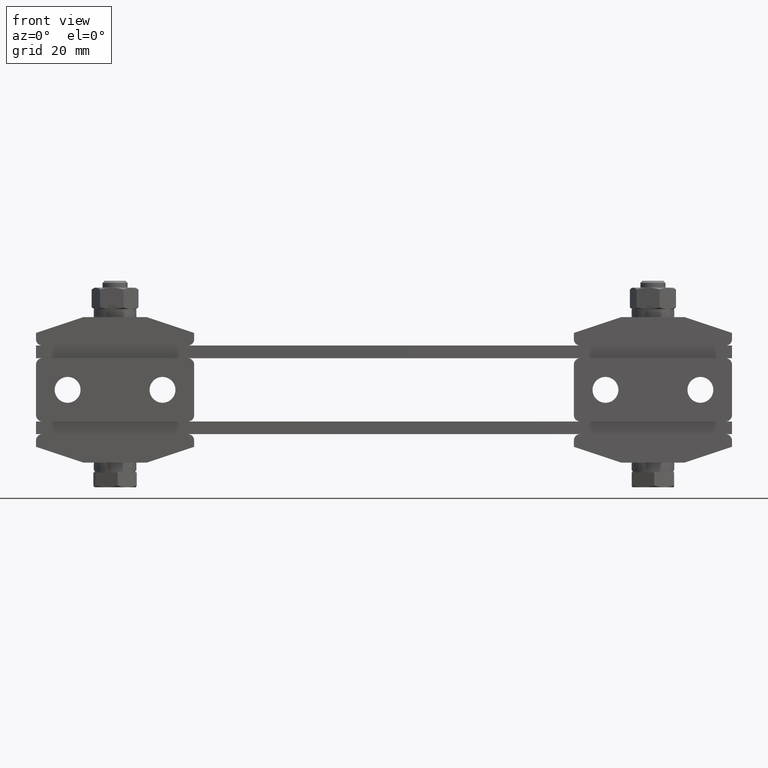
[diagram: clean part render]
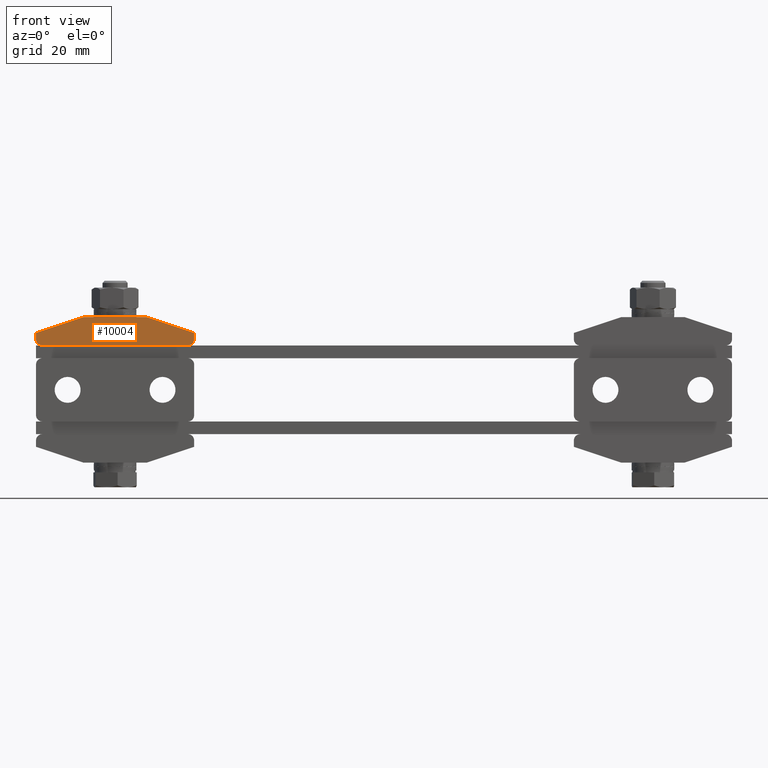
[diagram: same view with one face highlighted and labeled with its STEP entity id]
A machine part, front view. The second image highlights one B-rep face of the part: STEP entity #10004.
In plain terms, the highlighted planar face has unit normal (0, 1, -0).
Its self-contained STEP definition (entity closure, byte-faithful):
#509 = DIRECTION ( 'NONE',  ( -5.519574696289929800E-017, -1.000000000000000000, 4.040289502454674500E-018 ) ) ;
#593 = ORIENTED_EDGE ( 'NONE', *, *, #13971, .T. ) ;
#760 = VECTOR ( 'NONE', #12395, 1000.000000000000000 ) ;
#1137 = AXIS2_PLACEMENT_3D ( 'NONE', #18101, #14706, #9880 ) ;
#1358 = CARTESIAN_POINT ( 'NONE',  ( -103.8000000000000000, -12.50000000000000000, 46.60000000000000100 ) ) ;
#2336 = CARTESIAN_POINT ( 'NONE',  ( -108.0000000000000000, -12.50000000000000000, 28.00000000000000000 ) ) ;
#2401 = LINE ( 'NONE', #1358, #10660 ) ;
#2480 = PLANE ( 'NONE',  #20791 ) ;
#2803 = CARTESIAN_POINT ( 'NONE',  ( -110.0000000000000000, -12.50000000000000000, 30.00000000000000000 ) ) ;
#3065 = VERTEX_POINT ( 'NONE', #2803 ) ;
#3656 = CIRCLE ( 'NONE', #4290, 2.000000000000001800 ) ;
#3668 = EDGE_CURVE ( 'NONE', #3065, #17751, #11317, .T. ) ;
#3853 = VECTOR ( 'NONE', #10590, 1000.000000000000000 ) ;
#3958 = VERTEX_POINT ( 'NONE', #7818 ) ;
#4135 = CARTESIAN_POINT ( 'NONE',  ( -110.0000000000000000, -12.50000000000000000, 28.00000000000000000 ) ) ;
#4290 = AXIS2_PLACEMENT_3D ( 'NONE', #8620, #509, #12091 ) ;
#4478 = CARTESIAN_POINT ( 'NONE',  ( -110.0000000000000000, -12.50000000000000000, 37.00000000000000000 ) ) ;
#5579 = LINE ( 'NONE', #4478, #14860 ) ;
#5588 = EDGE_CURVE ( 'NONE', #10087, #8349, #8396, .T. ) ;
#5600 = EDGE_CURVE ( 'NONE', #10969, #10087, #5579, .T. ) ;
#5717 = CARTESIAN_POINT ( 'NONE',  ( -110.0000000000000000, -12.50000000000000000, 28.00000000000000000 ) ) ;
#5784 = DIRECTION ( 'NONE',  ( 1.387778780781482000E-017, 4.040289502454740000E-018, 1.000000000000000000 ) ) ;
#7307 = ORIENTED_EDGE ( 'NONE', *, *, #5600, .T. ) ;
#7612 = CARTESIAN_POINT ( 'NONE',  ( -95.00000000000000000, -12.50000000000000000, 37.00000000000000000 ) ) ;
#7657 = ORIENTED_EDGE ( 'NONE', *, *, #20058, .T. ) ;
#7818 = CARTESIAN_POINT ( 'NONE',  ( -62.00000000000000000, -12.50000000000000000, 28.00000000000000000 ) ) ;
#8349 = VERTEX_POINT ( 'NONE', #17160 ) ;
#8396 = LINE ( 'NONE', #12702, #19132 ) ;
#8620 = CARTESIAN_POINT ( 'NONE',  ( -62.00000000000000000, -12.50000000000000000, 30.00000000000000000 ) ) ;
#8701 = FACE_OUTER_BOUND ( 'NONE', #19844, .T. ) ;
#9001 = EDGE_CURVE ( 'NONE', #15665, #10356, #10829, .T. ) ;
#9137 = LINE ( 'NONE', #5717, #14565 ) ;
#9774 = EDGE_CURVE ( 'NONE', #3958, #17751, #17174, .T. ) ;
#9880 = DIRECTION ( 'NONE',  ( 0.0000000000000000000, 0.0000000000000000000, 1.000000000000000000 ) ) ;
#10004 = ADVANCED_FACE ( 'NONE', ( #8701 ), #2480, .F. ) ;
#10087 = VERTEX_POINT ( 'NONE', #7612 ) ;
#10356 = VERTEX_POINT ( 'NONE', #19035 ) ;
#10363 = ORIENTED_EDGE ( 'NONE', *, *, #5588, .T. ) ;
#10590 = DIRECTION ( 'NONE',  ( 1.387778780781482000E-017, 4.040289502454740000E-018, 1.000000000000000000 ) ) ;
#10660 = VECTOR ( 'NONE', #14456, 999.9999999999998900 ) ;
#10750 = CARTESIAN_POINT ( 'NONE',  ( -110.0000000000000000, -12.50000000000000000, 28.00000000000000000 ) ) ;
#10829 = LINE ( 'NONE', #13751, #3853 ) ;
#10969 = VERTEX_POINT ( 'NONE', #16588 ) ;
#11317 = CIRCLE ( 'NONE', #1137, 2.000000000000001800 ) ;
#12091 = DIRECTION ( 'NONE',  ( 0.0000000000000000000, 0.0000000000000000000, 1.000000000000000000 ) ) ;
#12395 = DIRECTION ( 'NONE',  ( -1.000000000000000000, 5.519574696289799800E-017, 1.387778780781432000E-017 ) ) ;
#12495 = ORIENTED_EDGE ( 'NONE', *, *, #9774, .F. ) ;
#12702 = CARTESIAN_POINT ( 'NONE',  ( -111.1999999999999900, -12.50000000000000000, 31.60000000000000100 ) ) ;
#13751 = CARTESIAN_POINT ( 'NONE',  ( -60.00000000000000000, -12.50000000000000000, 28.00000000000000000 ) ) ;
#13971 = EDGE_CURVE ( 'NONE', #10356, #10969, #2401, .T. ) ;
#14456 = DIRECTION ( 'NONE',  ( -0.9486832980505142100, 5.364093499054570500E-017, 0.3162277660168371100 ) ) ;
#14565 = VECTOR ( 'NONE', #19149, 1000.000000000000000 ) ;
#14706 = DIRECTION ( 'NONE',  ( -5.519574696289929800E-017, -1.000000000000000000, 4.040289502454674500E-018 ) ) ;
#14860 = VECTOR ( 'NONE', #19953, 1000.000000000000000 ) ;
#15427 = ORIENTED_EDGE ( 'NONE', *, *, #9001, .T. ) ;
#15665 = VERTEX_POINT ( 'NONE', #16643 ) ;
#16139 = ORIENTED_EDGE ( 'NONE', *, *, #3668, .T. ) ;
#16588 = CARTESIAN_POINT ( 'NONE',  ( -75.00000000000000000, -12.50000000000000000, 37.00000000000000000 ) ) ;
#16635 = ORIENTED_EDGE ( 'NONE', *, *, #18315, .F. ) ;
#16643 = CARTESIAN_POINT ( 'NONE',  ( -60.00000000000000000, -12.50000000000000000, 30.00000000000000000 ) ) ;
#17160 = CARTESIAN_POINT ( 'NONE',  ( -110.0000000000000000, -12.50000000000000000, 32.00000000000000000 ) ) ;
#17174 = LINE ( 'NONE', #10750, #760 ) ;
#17387 = DIRECTION ( 'NONE',  ( 5.519574696289929800E-017, 1.000000000000000000, -4.040289502454740700E-018 ) ) ;
#17751 = VERTEX_POINT ( 'NONE', #2336 ) ;
#18101 = CARTESIAN_POINT ( 'NONE',  ( -108.0000000000000000, -12.50000000000000000, 30.00000000000000000 ) ) ;
#18315 = EDGE_CURVE ( 'NONE', #3065, #8349, #9137, .T. ) ;
#18993 = DIRECTION ( 'NONE',  ( -0.9486832980505138800, 5.108563154370071700E-017, -0.3162277660168375500 ) ) ;
#19035 = CARTESIAN_POINT ( 'NONE',  ( -60.00000000000000000, -12.50000000000000000, 32.00000000000000000 ) ) ;
#19132 = VECTOR ( 'NONE', #18993, 999.9999999999998900 ) ;
#19149 = DIRECTION ( 'NONE',  ( 1.387778780781482000E-017, 4.040289502454740000E-018, 1.000000000000000000 ) ) ;
#19844 = EDGE_LOOP ( 'NONE', ( #12495, #7657, #15427, #593, #7307, #10363, #16635, #16139 ) ) ;
#19953 = DIRECTION ( 'NONE',  ( -1.000000000000000000, 5.519574696289799800E-017, 1.387778780781432000E-017 ) ) ;
#20058 = EDGE_CURVE ( 'NONE', #3958, #15665, #3656, .T. ) ;
#20791 = AXIS2_PLACEMENT_3D ( 'NONE', #4135, #17387, #5784 ) ;